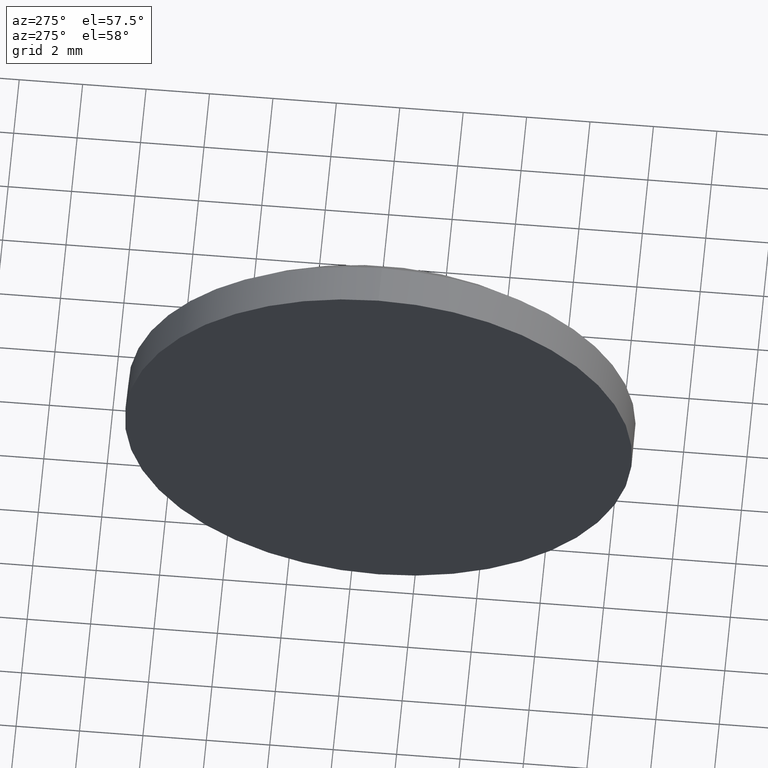
[diagram: clean part render]
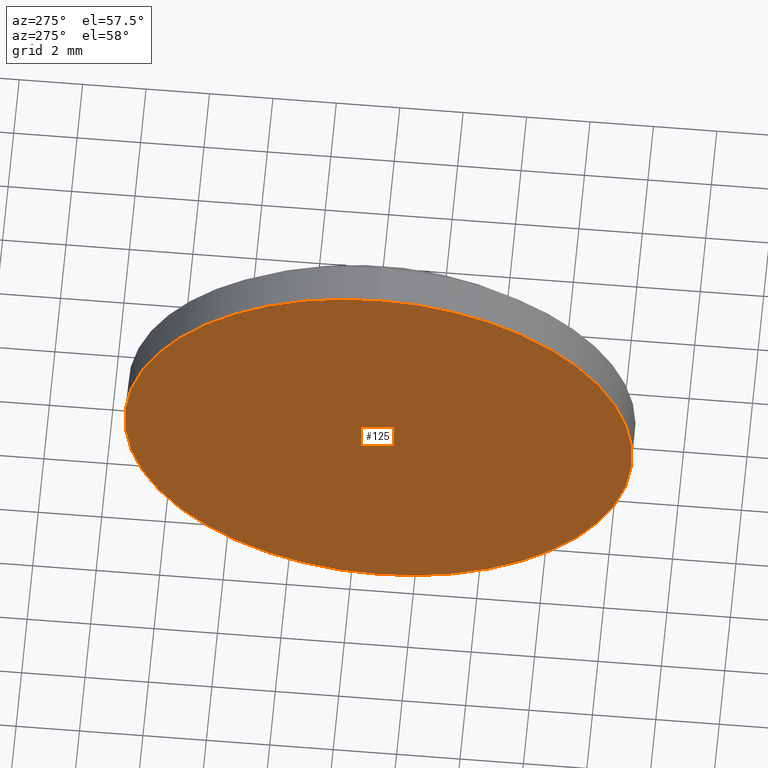
[diagram: same view with one face highlighted and labeled with its STEP entity id]
A machine part, auxiliary view. The second image highlights one B-rep face of the part: STEP entity #125.
In plain terms, the highlighted planar face has unit normal (1, 0, 0).
Its self-contained STEP definition (entity closure, byte-faithful):
#10 = DIRECTION ( 'NONE',  ( -1.000000000000000000, -0.0000000000000000000, -0.0000000000000000000 ) ) ;
#20 = EDGE_CURVE ( 'NONE', #134, #43, #52, .T. ) ;
#23 = CARTESIAN_POINT ( 'NONE',  ( 476.4108959545010300, 109.1334144669234500, 0.0000000000000000000 ) ) ;
#34 = DIRECTION ( 'NONE',  ( 1.000000000000000000, 0.0000000000000000000, 0.0000000000000000000 ) ) ;
#37 = ORIENTED_EDGE ( 'NONE', *, *, #66, .T. ) ;
#41 = CIRCLE ( 'NONE', #136, 8.000000000000007100 ) ;
#43 = VERTEX_POINT ( 'NONE', #130 ) ;
#45 = CARTESIAN_POINT ( 'NONE',  ( 476.4108959545010300, 109.1334144669234500, 8.000000000000007100 ) ) ;
#52 = CIRCLE ( 'NONE', #135, 8.000000000000007100 ) ;
#66 = EDGE_CURVE ( 'NONE', #43, #134, #41, .T. ) ;
#90 = CARTESIAN_POINT ( 'NONE',  ( 476.4108959545010300, 109.1334144669234500, 0.0000000000000000000 ) ) ;
#91 = FACE_OUTER_BOUND ( 'NONE', #161, .T. ) ;
#95 = DIRECTION ( 'NONE',  ( 0.0000000000000000000, 0.0000000000000000000, 1.000000000000000000 ) ) ;
#96 = CARTESIAN_POINT ( 'NONE',  ( 476.4108959545010300, 109.1334144669234500, 0.0000000000000000000 ) ) ;
#125 = ADVANCED_FACE ( 'NONE', ( #91 ), #151, .F. ) ;
#128 = DIRECTION ( 'NONE',  ( -1.000000000000000000, -0.0000000000000000000, -0.0000000000000000000 ) ) ;
#130 = CARTESIAN_POINT ( 'NONE',  ( 476.4108959545010300, 109.1334144669234500, -8.000000000000007100 ) ) ;
#134 = VERTEX_POINT ( 'NONE', #45 ) ;
#135 = AXIS2_PLACEMENT_3D ( 'NONE', #96, #10, #155 ) ;
#136 = AXIS2_PLACEMENT_3D ( 'NONE', #23, #128, #95 ) ;
#151 = PLANE ( 'NONE',  #173 ) ;
#153 = DIRECTION ( 'NONE',  ( 0.0000000000000000000, 0.0000000000000000000, -1.000000000000000000 ) ) ;
#155 = DIRECTION ( 'NONE',  ( 0.0000000000000000000, 0.0000000000000000000, 1.000000000000000000 ) ) ;
#161 = EDGE_LOOP ( 'NONE', ( #178, #37 ) ) ;
#173 = AXIS2_PLACEMENT_3D ( 'NONE', #90, #34, #153 ) ;
#178 = ORIENTED_EDGE ( 'NONE', *, *, #20, .T. ) ;